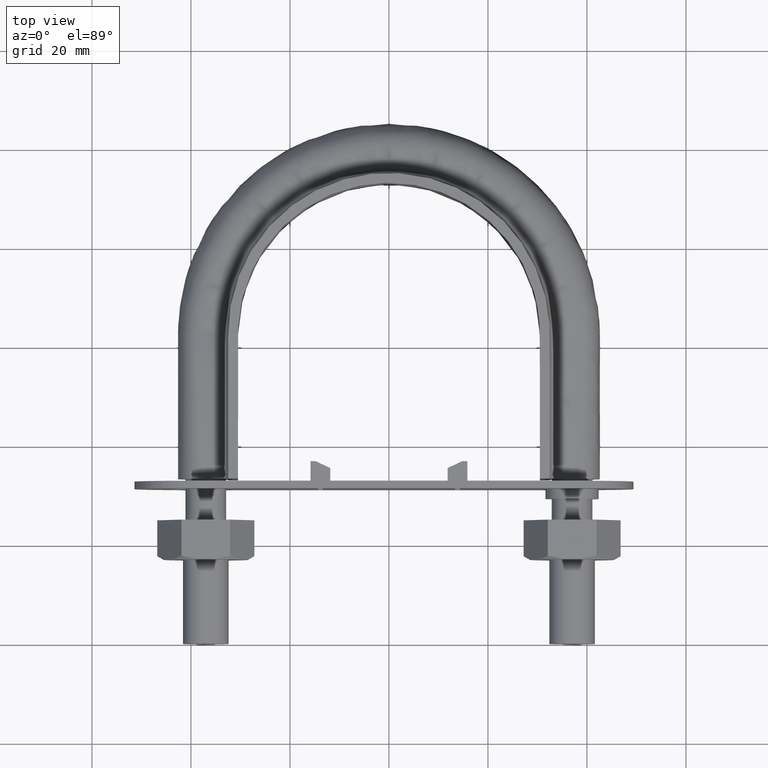
[diagram: clean part render]
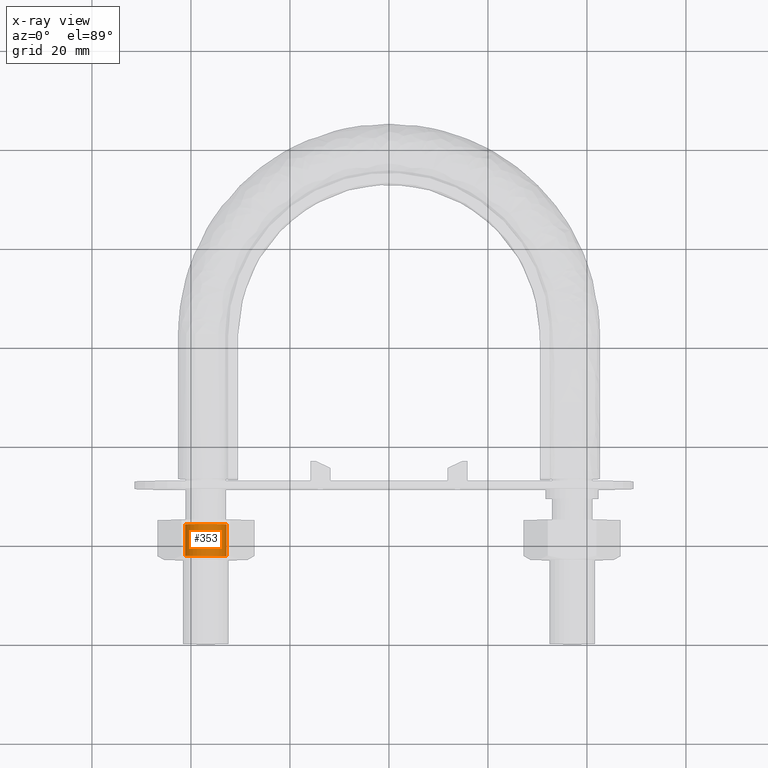
[diagram: x-ray — body ghosted, one internal face saturated and labeled with its STEP entity id]
A machine part, top view, then the same camera in x-ray: the body is ghosted and one INTERNAL B-rep face — a face not visible from any outside direction — is saturated and labeled: STEP entity #353.
In plain terms, the highlighted cylindrical surface (bore or boss wall) has radius 4.188 mm, axis along (-0, -1, 0).
Its self-contained STEP definition (entity closure, byte-faithful):
#353 = ADVANCED_FACE( '', ( #576, #577 ), #578, .F. );
#576 = FACE_OUTER_BOUND( '', #1654, .T. );
#577 = FACE_OUTER_BOUND( '', #1655, .T. );
#578 = CYLINDRICAL_SURFACE( '', #1656, 4.18799999999973 );
#1654 = EDGE_LOOP( '', ( #2332 ) );
#1655 = EDGE_LOOP( '', ( #2333 ) );
#1656 = AXIS2_PLACEMENT_3D( '', #2334, #2335, #2336 );
#2332 = ORIENTED_EDGE( '', *, *, #2683, .T. );
#2333 = ORIENTED_EDGE( '', *, *, #2698, .F. );
#2334 = CARTESIAN_POINT( '', ( -37.0000000000000, 25.0000000000000, -1.56749613289264E-015 ) );
#2335 = DIRECTION( '', ( -2.44921270764476E-016, -1.00000000000000, 6.12303176911189E-017 ) );
#2336 = DIRECTION( '', ( -6.99440505513849E-015, -6.12303176911172E-017, -1.00000000000000 ) );
#2683 = EDGE_CURVE( '', #3033, #3033, #3034, .T. );
#2698 = EDGE_CURVE( '', #3051, #3051, #3052, .F. );
#3033 = VERTEX_POINT( '', #3803 );
#3034 = CIRCLE( '', #3804, 4.18799999999973 );
#3051 = VERTEX_POINT( '', #3834 );
#3052 = CIRCLE( '', #3835, 4.18799999999973 );
#3803 = CARTESIAN_POINT( '', ( -41.1879999999997, 24.1880000000000, -1.51777711492746E-015 ) );
#3804 = AXIS2_PLACEMENT_3D( '', #4220, #4221, #4222 );
#3834 = CARTESIAN_POINT( '', ( -32.8120000000003, 17.8120000000003, -1.12737260932890E-015 ) );
#3835 = AXIS2_PLACEMENT_3D( '', #4253, #4254, #4255 );
#4220 = CARTESIAN_POINT( '', ( -37.0000000000000, 24.1880000000000, -1.51777711492746E-015 ) );
#4221 = DIRECTION( '', ( 2.44921270764476E-016, 1.00000000000000, -6.12303176911189E-017 ) );
#4222 = DIRECTION( '', ( -1.00000000000000, 2.44921270764476E-016, 0.000000000000000 ) );
#4253 = CARTESIAN_POINT( '', ( -37.0000000000000, 17.8120000000003, -1.12737260932890E-015 ) );
#4254 = DIRECTION( '', ( -2.44921270764476E-016, -1.00000000000000, 6.12303176911189E-017 ) );
#4255 = DIRECTION( '', ( 1.00000000000000, -2.44921270764476E-016, 0.000000000000000 ) );